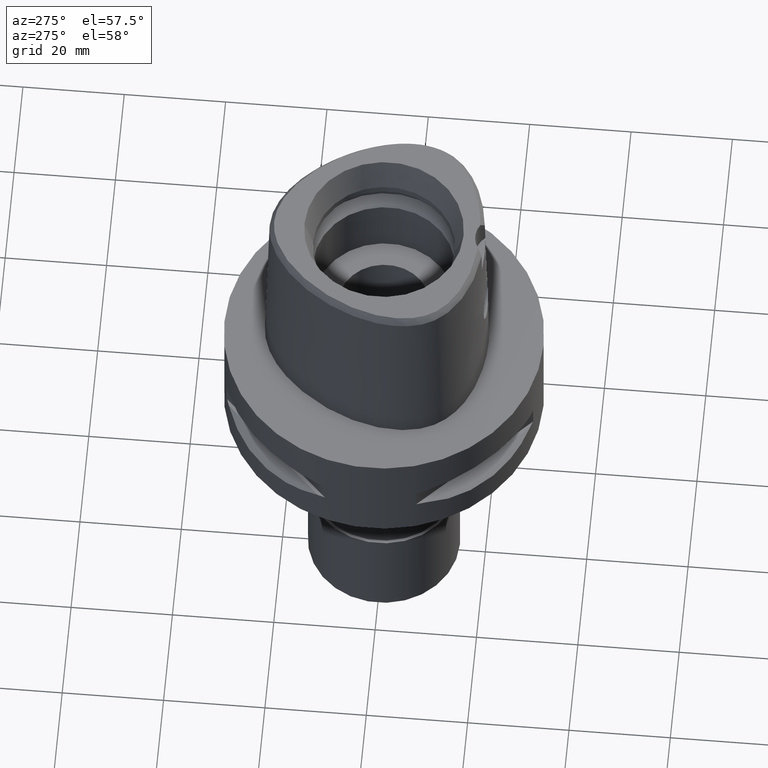
[diagram: clean part render]
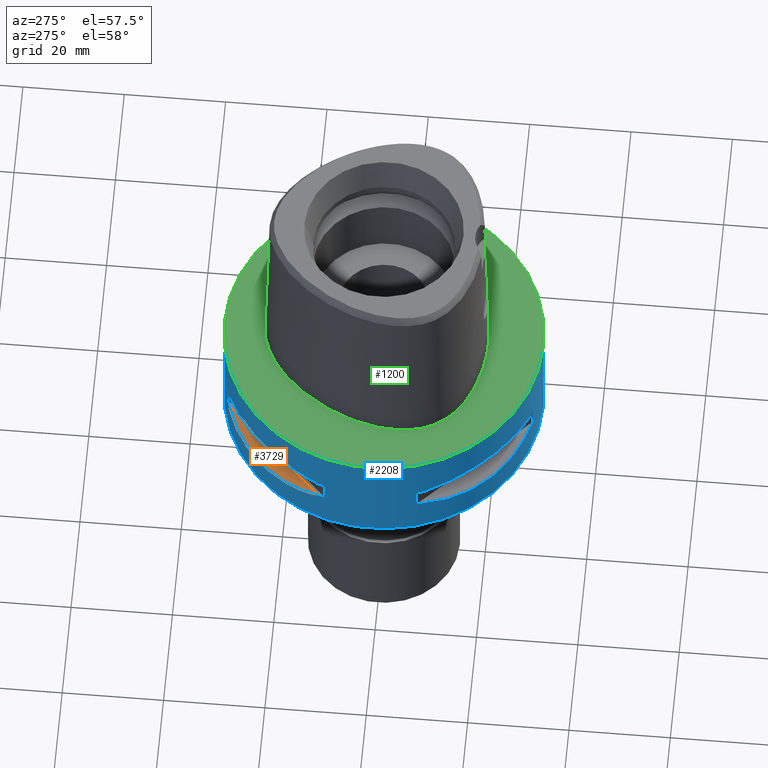
[diagram: same view with three faces highlighted in distinct colors, each labeled with its STEP entity id]
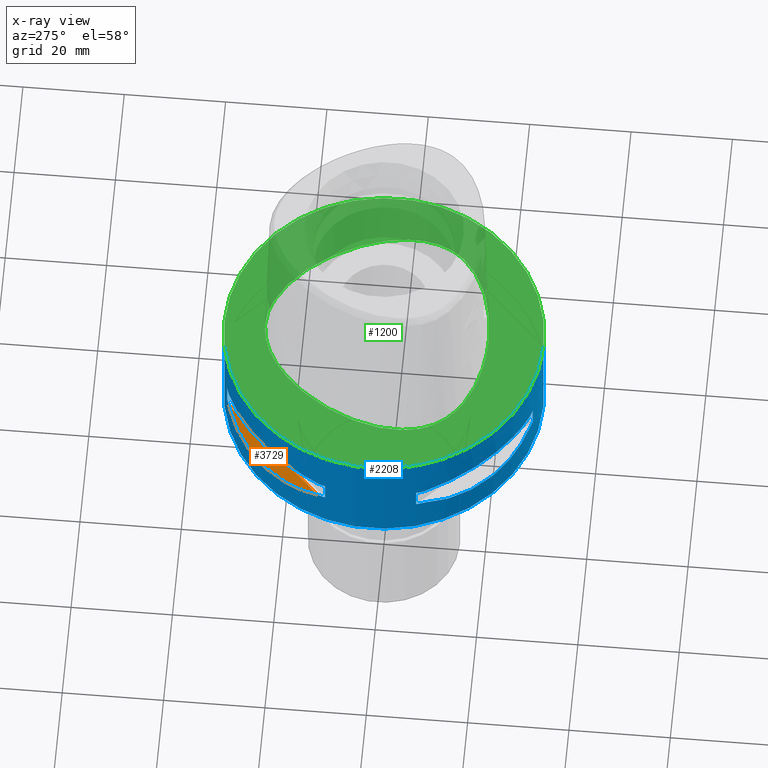
[diagram: x-ray of the same camera — body ghosted, the three highlighted faces saturated]
A machine part, auxiliary view with three faces highlighted in distinct colors.
The next image is the same camera in x-ray (body ghosted, the three faces saturated) — at least one of them is partly hidden behind the body in this view.
Their STEP definitions:

[orange] entity #3729 — the highlighted planar face has unit normal (0.3536, -0.3536, -0.866).
#11 = CARTESIAN_POINT ( 'NONE',  ( -10.44775724750000023, 29.71690375017999841, -14.05000000000000071 ) ) ;
#62 = CARTESIAN_POINT ( 'NONE',  ( -24.23018836745279714, 20.18579225685798306, -15.78559396978850415 ) ) ;
#85 = CARTESIAN_POINT ( 'NONE',  ( -26.01217882834653139, 17.76952662671834915, -15.52665221626015501 ) ) ;
#267 = DIRECTION ( 'NONE',  ( 0.3535533905933054277, -0.3535533905933049836, -0.8660254037844130615 ) ) ;
#454 = VECTOR ( 'NONE', #1169, 1000.000000000000114 ) ;
#568 = CARTESIAN_POINT ( 'NONE',  ( -34.22446612257000709, 5.940194875108000261, -14.05000000000000071 ) ) ;
#591 = PLANE ( 'NONE',  #3507 ) ;
#779 = CARTESIAN_POINT ( 'NONE',  ( -23.08532645888017854, 21.46242677077873751, -15.83938991065184076 ) ) ;
#852 = CARTESIAN_POINT ( 'NONE',  ( -29.71690375017999841, 10.44775724750000023, -14.05000000000000071 ) ) ;
#982 = CARTESIAN_POINT ( 'NONE',  ( -29.71690375017999841, 10.44775724750000023, -14.05000000000000071 ) ) ;
#1070 = CARTESIAN_POINT ( 'NONE',  ( -13.25636937902232404, 28.62019653469382163, -14.74888225540932751 ) ) ;
#1169 = DIRECTION ( 'NONE',  ( -0.7071067811865474617, -0.7071067811865474617, 0.0000000000000000000 ) ) ;
#1298 = FACE_OUTER_BOUND ( 'NONE', #1595, .T. ) ;
#1440 = CARTESIAN_POINT ( 'NONE',  ( -11.58970337493613378, 29.31542262584994418, -14.35229357166721265 ) ) ;
#1562 = CARTESIAN_POINT ( 'NONE',  ( -20.65093790435807364, 23.89673728056094859, -15.83935804902020550 ) ) ;
#1586 = CARTESIAN_POINT ( 'NONE',  ( -26.42800887047508240, 17.14106442934706820, -15.43984550238465836 ) ) ;
#1595 = EDGE_LOOP ( 'NONE', ( #3474, #2455 ) ) ;
#1975 = CARTESIAN_POINT ( 'NONE',  ( -26.29071741523646111, 17.35163608579689409, -15.46976201925398087 ) ) ;
#2009 = VERTEX_POINT ( 'NONE', #2366 ) ;
#2082 = DIRECTION ( 'NONE',  ( 0.0000000000000000000, -0.9258200997725358761, 0.3779644730092654448 ) ) ;
#2198 = CARTESIAN_POINT ( 'NONE',  ( -16.03138450077636534, 27.11872488589498786, -15.26880420107476333 ) ) ;
#2296 = CARTESIAN_POINT ( 'NONE',  ( -27.86285265926284893, 14.89252659058025685, -15.10765629752004813 ) ) ;
#2321 = CARTESIAN_POINT ( 'NONE',  ( -28.91382665368626093, 12.73197616788979047, -14.65467361754097197 ) ) ;
#2366 = CARTESIAN_POINT ( 'NONE',  ( -10.44775724750000023, 29.71690375017999841, -14.05000000000000071 ) ) ;
#2455 = ORIENTED_EDGE ( 'NONE', *, *, #4789, .T. ) ;
#2576 = CARTESIAN_POINT ( 'NONE',  ( -15.11986997308662595, 27.64634172018752523, -15.11207862403231239 ) ) ;
#2673 = CARTESIAN_POINT ( 'NONE',  ( -16.80193241490443157, 26.64486562695815053, -15.38992683735661515 ) ) ;
#2697 = CARTESIAN_POINT ( 'NONE',  ( -26.54368690921649687, 16.96123479564916892, -15.41365572341313239 ) ) ;
#2716 = CARTESIAN_POINT ( 'NONE',  ( -25.43927894891607622, 18.59229662064853983, -15.62866126334269623 ) ) ;
#2943 = EDGE_CURVE ( 'NONE', #2009, #3586, #3057, .T. ) ;
#3057 = LINE ( 'NONE', #11, #454 ) ;
#3086 = CARTESIAN_POINT ( 'NONE',  ( -18.86897208073744991, 25.32725744467937545, -15.69588095933747240 ) ) ;
#3333 = CARTESIAN_POINT ( 'NONE',  ( -16.70616724745637072, 26.70521063584585164, -15.37546661817639126 ) ) ;
#3458 = CARTESIAN_POINT ( 'NONE',  ( -16.89910283486545950, 26.58330558444438907, -15.40446471307224030 ) ) ;
#3474 = ORIENTED_EDGE ( 'NONE', *, *, #2943, .F. ) ;
#3482 = CARTESIAN_POINT ( 'NONE',  ( -16.86571563436579169, 26.60451452154777030, -15.39949295785988426 ) ) ;
#3507 = AXIS2_PLACEMENT_3D ( 'NONE', #568, #267, #2082 ) ;
#3586 = VERTEX_POINT ( 'NONE', #982 ) ;
#3708 = CARTESIAN_POINT ( 'NONE',  ( -16.48208282228564769, 26.84474411198887012, -15.34094883777873619 ) ) ;
#3729 = ADVANCED_FACE ( 'NONE', ( #1298 ), #591, .F. ) ;
#4154 = CARTESIAN_POINT ( 'NONE',  ( -26.48642424310458665, 17.05047092244234008, -15.42670883407647509 ) ) ;
#4592 = CARTESIAN_POINT ( 'NONE',  ( -26.52527364208584615, 16.98999780422065342, -15.41788098766309467 ) ) ;
#4682 = B_SPLINE_CURVE_WITH_KNOTS ( 'NONE', 3,
 ( #4824, #1440, #1070, #2576, #2198, #3708, #3333, #2673, #3482, #3458, #3086, #1562, #779, #62, #2716, #85, #1975, #1586, #4154, #4592, #2697, #2296, #2321, #852 ),
 .UNSPECIFIED., .F., .F.,
 ( 4, 1, 1, 1, 1, 1, 2, 2, 2, 1, 1, 1, 1, 1, 2, 2, 4 ),
 ( 0.0000000000000000000, 0.1249999999999950040, 0.1874999999999924505, 0.2187499999999911737, 0.2343749999999902855, 0.2421874999999899802, 0.2460937499999900080, 0.2499999999999900080, 0.4999999999999917843, 0.6249999999999925615, 0.6874999999999925615, 0.7187499999999924505, 0.7343749999999926725, 0.7421874999999927836, 0.7460937499999928946, 0.7499999999999931166, 1.000000000000000000 ),
 .UNSPECIFIED. ) ;
#4789 = EDGE_CURVE ( 'NONE', #2009, #3586, #4682, .T. ) ;
#4824 = CARTESIAN_POINT ( 'NONE',  ( -10.44775724750000023, 29.71690375017999841, -14.05000000000000071 ) ) ;

[blue] entity #2208 — the highlighted cylindrical surface (partial cylindrical patch) has radius 31.5 mm, axis along (0, 0, -1).
#4 = CARTESIAN_POINT ( 'NONE',  ( -29.71690375017999841, -10.44775724750000023, -14.05000000000000071 ) ) ;
#28 = EDGE_CURVE ( 'NONE', #4621, #2603, #4484, .T. ) ;
#62 = CARTESIAN_POINT ( 'NONE',  ( -24.23018836745279714, 20.18579225685798306, -15.78559396978850415 ) ) ;
#77 = ORIENTED_EDGE ( 'NONE', *, *, #3761, .T. ) ;
#85 = CARTESIAN_POINT ( 'NONE',  ( -26.01217882834653139, 17.76952662671834915, -15.52665221626015501 ) ) ;
#89 = ORIENTED_EDGE ( 'NONE', *, *, #2411, .T. ) ;
#112 = CARTESIAN_POINT ( 'NONE',  ( -29.71690375017999841, 10.44775724750000023, -9.949999999998999201 ) ) ;
#115 = CARTESIAN_POINT ( 'NONE',  ( -14.84422749192772883, 27.88214534473898354, -8.906206096515608905 ) ) ;
#140 = AXIS2_PLACEMENT_3D ( 'NONE', #3838, #1223, #2701 ) ;
#144 = CARTESIAN_POINT ( 'NONE',  ( -18.81455742157509903, 25.37277178172508840, -8.309746333145048069 ) ) ;
#204 = CIRCLE ( 'NONE', #295, 31.50000000000000711 ) ;
#213 = EDGE_LOOP ( 'NONE', ( #1305, #503, #1610, #4202, #4098, #2536, #3238, #89 ) ) ;
#216 = AXIS2_PLACEMENT_3D ( 'NONE', #3082, #1215, #4217 ) ;
#224 = CARTESIAN_POINT ( 'NONE',  ( 0.0000000000000000000, 1.266468487337999962E-14, -9.950000000000001066 ) ) ;
#232 = CIRCLE ( 'NONE', #471, 31.50000000000001776 ) ;
#251 = CARTESIAN_POINT ( 'NONE',  ( -8.981198972017999438, 30.19251670572000279, -9.950000000000001066 ) ) ;
#274 = DIRECTION ( 'NONE',  ( -0.9433937698468619626, -0.3316748332540863653, 0.0000000000000000000 ) ) ;
#280 = ORIENTED_EDGE ( 'NONE', *, *, #3002, .T. ) ;
#295 = AXIS2_PLACEMENT_3D ( 'NONE', #655, #1359, #3696 ) ;
#337 = DIRECTION ( 'NONE',  ( -0.9584925938322735872, -0.2851174276831918153, 0.0000000000000000000 ) ) ;
#340 = CARTESIAN_POINT ( 'NONE',  ( -26.58330558444411906, -16.89910283486596754, -15.40446471307235754 ) ) ;
#363 = CARTESIAN_POINT ( 'NONE',  ( -25.32725744469575702, -18.86897208070564247, -15.69588095933118943 ) ) ;
#366 = DIRECTION ( 'NONE',  ( 0.0000000000000000000, 0.0000000000000000000, -1.000000000000000000 ) ) ;
#376 = AXIS2_PLACEMENT_3D ( 'NONE', #1607, #2696, #1513 ) ;
#411 = CARTESIAN_POINT ( 'NONE',  ( 0.0000000000000000000, 1.266468487337999962E-14, -9.950000000000001066 ) ) ;
#413 = CARTESIAN_POINT ( 'NONE',  ( -26.64486562695783789, -16.80193241490531975, -15.38992683735687272 ) ) ;
#415 = CARTESIAN_POINT ( 'NONE',  ( -14.84430321572443034, -27.88210502987327288, -8.906184731984689407 ) ) ;
#425 = DIRECTION ( 'NONE',  ( 0.0000000000000000000, 0.0000000000000000000, 1.000000000000000000 ) ) ;
#438 = CARTESIAN_POINT ( 'NONE',  ( -8.981198972017999438, 30.19251670572000279, -14.05000000000000071 ) ) ;
#471 = AXIS2_PLACEMENT_3D ( 'NONE', #4291, #2427, #3934 ) ;
#503 = ORIENTED_EDGE ( 'NONE', *, *, #4489, .F. ) ;
#513 = EDGE_CURVE ( 'NONE', #4326, #1454, #4220, .T. ) ;
#570 = CARTESIAN_POINT ( 'NONE',  ( -30.19251670572000279, -8.981198972019999616, -9.950000000000001066 ) ) ;
#655 = CARTESIAN_POINT ( 'NONE',  ( 0.0000000000000000000, 1.266468487337999962E-14, -14.05000000000000071 ) ) ;
#669 = LINE ( 'NONE', #251, #2875 ) ;
#689 = CIRCLE ( 'NONE', #3592, 31.50000000000001776 ) ;
#715 = CARTESIAN_POINT ( 'NONE',  ( -27.11872488589304453, -16.03138450078185429, -15.26880420107623237 ) ) ;
#738 = CARTESIAN_POINT ( 'NONE',  ( 0.0000000000000000000, 31.50000000000000000, -22.00000000000000000 ) ) ;
#760 = CARTESIAN_POINT ( 'NONE',  ( -16.96123479564984748, -26.54368690921626950, -15.41365572341332424 ) ) ;
#762 = CYLINDRICAL_SURFACE ( 'NONE', #3907, 31.50000000000000000 ) ;
#779 = CARTESIAN_POINT ( 'NONE',  ( -23.08532645888017854, 21.46242677077873751, -15.83938991065184076 ) ) ;
#830 = CARTESIAN_POINT ( 'NONE',  ( -28.92474506843119286, -12.70092055735351266, -9.353547358214942875 ) ) ;
#849 = CARTESIAN_POINT ( 'NONE',  ( 0.0000000000000000000, 31.50000000000000000, 0.0000000000000000000 ) ) ;
#852 = CARTESIAN_POINT ( 'NONE',  ( -29.71690375017999841, 10.44775724750000023, -14.05000000000000071 ) ) ;
#861 = CARTESIAN_POINT ( 'NONE',  ( -27.88214534467230976, -14.84422749205291581, -8.906206096480268286 ) ) ;
#887 = CARTESIAN_POINT ( 'NONE',  ( -23.90617837150508507, -20.64154884324739214, -8.160627831297876611 ) ) ;
#937 = LINE ( 'NONE', #963, #3848 ) ;
#959 = CARTESIAN_POINT ( 'NONE',  ( -29.71690375017999841, -10.44775724750000023, -9.949999999998999201 ) ) ;
#963 = CARTESIAN_POINT ( 'NONE',  ( -8.981198972017999438, -30.19251670572000279, -14.05000000000000071 ) ) ;
#982 = CARTESIAN_POINT ( 'NONE',  ( -29.71690375017999841, 10.44775724750000023, -14.05000000000000071 ) ) ;
#1002 = VECTOR ( 'NONE', #3090, 1000.000000000000000 ) ;
#1012 = CIRCLE ( 'NONE', #376, 31.50000000000001776 ) ;
#1070 = CARTESIAN_POINT ( 'NONE',  ( -13.25636937902232404, 28.62019653469382163, -14.74888225540932751 ) ) ;
#1106 = CARTESIAN_POINT ( 'NONE',  ( -30.19251670572000279, -8.981198972017999438, -9.950000000000001066 ) ) ;
#1126 = VERTEX_POINT ( 'NONE', #2632 ) ;
#1143 = DIRECTION ( 'NONE',  ( -0.3316748332540863653, -0.9433937698468619626, 0.0000000000000000000 ) ) ;
#1154 = CARTESIAN_POINT ( 'NONE',  ( -21.46242677078364025, -23.08532645888299939, -15.83938991065501867 ) ) ;
#1161 = CIRCLE ( 'NONE', #216, 31.50000000000001776 ) ;
#1215 = DIRECTION ( 'NONE',  ( 0.0000000000000000000, 0.0000000000000000000, -1.000000000000000000 ) ) ;
#1223 = DIRECTION ( 'NONE',  ( 0.0000000000000000000, 0.0000000000000000000, -1.000000000000000000 ) ) ;
#1236 = VECTOR ( 'NONE', #4509, 1000.000000000000000 ) ;
#1305 = ORIENTED_EDGE ( 'NONE', *, *, #1802, .T. ) ;
#1310 = AXIS2_PLACEMENT_3D ( 'NONE', #3799, #425, #1143 ) ;
#1324 = EDGE_CURVE ( 'NONE', #3288, #4370, #937, .T. ) ;
#1327 = CARTESIAN_POINT ( 'NONE',  ( 0.0000000000000000000, -31.50000000000000000, 0.0000000000000000000 ) ) ;
#1328 = VERTEX_POINT ( 'NONE', #570 ) ;
#1359 = DIRECTION ( 'NONE',  ( 0.0000000000000000000, 0.0000000000000000000, -1.000000000000000000 ) ) ;
#1398 = DIRECTION ( 'NONE',  ( -0.9433937698468619626, 0.3316748332540863653, 0.0000000000000000000 ) ) ;
#1424 = B_SPLINE_CURVE_WITH_KNOTS ( 'NONE', 3,
 ( #3840, #830, #861, #3144, #887, #3118, #4598, #415, #4206, #1983 ),
 .UNSPECIFIED., .F., .F.,
 ( 4, 2, 2, 2, 4 ),
 ( 0.0000000000000000000, 0.2499999999999999445, 0.4999999999999998890, 0.7499999999999997780, 1.000000000000000000 ),
 .UNSPECIFIED. ) ;
#1440 = CARTESIAN_POINT ( 'NONE',  ( -11.58970337493613378, 29.31542262584994418, -14.35229357166721265 ) ) ;
#1445 = CARTESIAN_POINT ( 'NONE',  ( -18.59229662065495958, -25.43927894891979946, -15.62866126334684580 ) ) ;
#1448 = DIRECTION ( 'NONE',  ( 0.0000000000000000000, 0.0000000000000000000, 1.000000000000000000 ) ) ;
#1454 = VERTEX_POINT ( 'NONE', #738 ) ;
#1486 = ORIENTED_EDGE ( 'NONE', *, *, #1523, .F. ) ;
#1495 = CARTESIAN_POINT ( 'NONE',  ( -17.76952662672209371, -26.01217882834868433, -15.52665221626257264 ) ) ;
#1498 = EDGE_CURVE ( 'NONE', #4621, #3851, #4074, .T. ) ;
#1513 = DIRECTION ( 'NONE',  ( -0.9584925938322735872, 0.2851174276831918153, 0.0000000000000000000 ) ) ;
#1519 = CARTESIAN_POINT ( 'NONE',  ( -29.71690375017999841, -10.44775724750000023, -14.05000000000000071 ) ) ;
#1523 = EDGE_CURVE ( 'NONE', #1328, #2603, #2581, .T. ) ;
#1561 = CARTESIAN_POINT ( 'NONE',  ( -8.981198972019999616, 30.19251670572000279, -9.950000000000001066 ) ) ;
#1562 = CARTESIAN_POINT ( 'NONE',  ( -20.65093790435807364, 23.89673728056094859, -15.83935804902020550 ) ) ;
#1575 = VERTEX_POINT ( 'NONE', #112 ) ;
#1586 = CARTESIAN_POINT ( 'NONE',  ( -26.42800887047508240, 17.14106442934706820, -15.43984550238465836 ) ) ;
#1589 = EDGE_CURVE ( 'NONE', #1907, #4326, #4228, .T. ) ;
#1600 = ORIENTED_EDGE ( 'NONE', *, *, #2098, .T. ) ;
#1607 = CARTESIAN_POINT ( 'NONE',  ( 0.0000000000000000000, 1.266468487337999962E-14, -14.05000000000000071 ) ) ;
#1610 = ORIENTED_EDGE ( 'NONE', *, *, #4057, .T. ) ;
#1615 = CARTESIAN_POINT ( 'NONE',  ( -23.90617837143843971, 20.64154884331406237, -8.160613588453220046 ) ) ;
#1644 = CARTESIAN_POINT ( 'NONE',  ( -25.37272068394556257, 18.81462633037747167, -8.309724968578811044 ) ) ;
#1687 = EDGE_CURVE ( 'NONE', #1907, #4468, #1980, .T. ) ;
#1796 = DIRECTION ( 'NONE',  ( 0.0000000000000000000, -1.000000000000000000, 0.0000000000000000000 ) ) ;
#1802 = EDGE_CURVE ( 'NONE', #1575, #2192, #2092, .T. ) ;
#1818 = CARTESIAN_POINT ( 'NONE',  ( -29.31542262584746794, -11.58970337494326941, -14.35229357166913999 ) ) ;
#1840 = CARTESIAN_POINT ( 'NONE',  ( -17.35163608579889072, -26.29071741523761929, -15.46976201925527761 ) ) ;
#1842 = CARTESIAN_POINT ( 'NONE',  ( 0.0000000000000000000, 1.266468487337999962E-14, -22.00000000000000000 ) ) ;
#1872 = CARTESIAN_POINT ( 'NONE',  ( 0.0000000000000000000, -31.50000000000000000, -22.00000000000000000 ) ) ;
#1907 = VERTEX_POINT ( 'NONE', #1327 ) ;
#1910 = CARTESIAN_POINT ( 'NONE',  ( -27.88210502980663819, 14.84430321584963330, -8.906184731949371880 ) ) ;
#1917 = EDGE_CURVE ( 'NONE', #4007, #2350, #669, .T. ) ;
#1975 = CARTESIAN_POINT ( 'NONE',  ( -26.29071741523646111, 17.35163608579689409, -15.46976201925398087 ) ) ;
#1980 = LINE ( 'NONE', #2722, #1002 ) ;
#1983 = CARTESIAN_POINT ( 'NONE',  ( -10.44775724750000023, -29.71690375017999841, -9.949999999998999201 ) ) ;
#1984 = CARTESIAN_POINT ( 'NONE',  ( -8.981198972019999616, -30.19251670572000279, -14.05000000000000071 ) ) ;
#2009 = VERTEX_POINT ( 'NONE', #2366 ) ;
#2011 = CIRCLE ( 'NONE', #1310, 31.50000000000000711 ) ;
#2072 = CARTESIAN_POINT ( 'NONE',  ( -30.19251670572000279, -8.981198972017999438, -14.05000000000000071 ) ) ;
#2092 = CIRCLE ( 'NONE', #3352, 31.50000000000000711 ) ;
#2098 = EDGE_CURVE ( 'NONE', #1454, #4468, #4772, .T. ) ;
#2192 = VERTEX_POINT ( 'NONE', #2926 ) ;
#2198 = CARTESIAN_POINT ( 'NONE',  ( -16.03138450077636534, 27.11872488589498786, -15.26880420107476333 ) ) ;
#2205 = CARTESIAN_POINT ( 'NONE',  ( -26.70521063584532229, -16.70616724745790549, -15.37546661817682292 ) ) ;
#2208 = ADVANCED_FACE ( 'NONE', ( #2630, #3319, #4088 ), #762, .T. ) ;
#2255 = CARTESIAN_POINT ( 'NONE',  ( -17.14106442934810204, -26.42800887047570058, -15.43984550238532982 ) ) ;
#2278 = CARTESIAN_POINT ( 'NONE',  ( -28.62019653468943048, -13.25636937903484203, -14.74888225541266884 ) ) ;
#2296 = CARTESIAN_POINT ( 'NONE',  ( -27.86285265926284893, 14.89252659058025685, -15.10765629752004813 ) ) ;
#2306 = EDGE_CURVE ( 'NONE', #2415, #2505, #1424, .T. ) ;
#2321 = CARTESIAN_POINT ( 'NONE',  ( -28.91382665368626093, 12.73197616788979047, -14.65467361754097197 ) ) ;
#2350 = VERTEX_POINT ( 'NONE', #438 ) ;
#2366 = CARTESIAN_POINT ( 'NONE',  ( -10.44775724750000023, 29.71690375017999841, -14.05000000000000071 ) ) ;
#2406 = CARTESIAN_POINT ( 'NONE',  ( -12.70092055726457225, 28.92474506846247451, -9.353547358238497367 ) ) ;
#2411 = EDGE_CURVE ( 'NONE', #3176, #1575, #4127, .T. ) ;
#2415 = VERTEX_POINT ( 'NONE', #959 ) ;
#2427 = DIRECTION ( 'NONE',  ( 0.0000000000000000000, 0.0000000000000000000, 1.000000000000000000 ) ) ;
#2467 = DIRECTION ( 'NONE',  ( 0.0000000000000000000, 0.0000000000000000000, -1.000000000000000000 ) ) ;
#2505 = VERTEX_POINT ( 'NONE', #3655 ) ;
#2536 = ORIENTED_EDGE ( 'NONE', *, *, #1917, .F. ) ;
#2576 = CARTESIAN_POINT ( 'NONE',  ( -15.11986997308662595, 27.64634172018752523, -15.11207862403231239 ) ) ;
#2581 = LINE ( 'NONE', #1106, #1236 ) ;
#2603 = VERTEX_POINT ( 'NONE', #2072 ) ;
#2630 = FACE_OUTER_BOUND ( 'NONE', #3161, .T. ) ;
#2632 = CARTESIAN_POINT ( 'NONE',  ( -30.19251670572000279, 8.981198972019999616, -14.05000000000000071 ) ) ;
#2636 = ORIENTED_EDGE ( 'NONE', *, *, #1324, .F. ) ;
#2654 = CARTESIAN_POINT ( 'NONE',  ( -16.98999780422095540, -26.52527364208602734, -15.41788098766330783 ) ) ;
#2673 = CARTESIAN_POINT ( 'NONE',  ( -16.80193241490443157, 26.64486562695815053, -15.38992683735661515 ) ) ;
#2681 = CARTESIAN_POINT ( 'NONE',  ( -29.71690375017999841, 10.44775724750000023, -9.949999999998999201 ) ) ;
#2696 = DIRECTION ( 'NONE',  ( 0.0000000000000000000, 0.0000000000000000000, -1.000000000000000000 ) ) ;
#2697 = CARTESIAN_POINT ( 'NONE',  ( -26.54368690921649687, 16.96123479564916892, -15.41365572341313239 ) ) ;
#2701 = DIRECTION ( 'NONE',  ( 0.0000000000000000000, -1.000000000000000000, 0.0000000000000000000 ) ) ;
#2708 = EDGE_CURVE ( 'NONE', #4007, #3176, #232, .T. ) ;
#2716 = CARTESIAN_POINT ( 'NONE',  ( -25.43927894891607622, 18.59229662064853983, -15.62866126334269623 ) ) ;
#2722 = CARTESIAN_POINT ( 'NONE',  ( 0.0000000000000000000, -31.50000000000000000, 0.0000000000000000000 ) ) ;
#2875 = VECTOR ( 'NONE', #2467, 1000.000000000000000 ) ;
#2926 = CARTESIAN_POINT ( 'NONE',  ( -30.19251670572000279, 8.981198972017999438, -9.950000000000001066 ) ) ;
#2946 = CARTESIAN_POINT ( 'NONE',  ( -10.44775724750000023, -29.71690375017999841, -14.05000000000000071 ) ) ;
#3002 = EDGE_CURVE ( 'NONE', #3288, #3851, #1161, .T. ) ;
#3056 = EDGE_CURVE ( 'NONE', #2505, #4370, #2011, .T. ) ;
#3058 = AXIS2_PLACEMENT_3D ( 'NONE', #4787, #3597, #274 ) ;
#3060 = DIRECTION ( 'NONE',  ( 0.0000000000000000000, 0.0000000000000000000, -1.000000000000000000 ) ) ;
#3082 = CARTESIAN_POINT ( 'NONE',  ( 0.0000000000000000000, 1.266468487337999962E-14, -14.05000000000000071 ) ) ;
#3086 = CARTESIAN_POINT ( 'NONE',  ( -18.86897208073744991, 25.32725744467937545, -15.69588095933747240 ) ) ;
#3090 = DIRECTION ( 'NONE',  ( 0.0000000000000000000, 0.0000000000000000000, -1.000000000000000000 ) ) ;
#3093 = CARTESIAN_POINT ( 'NONE',  ( -28.92472615203844910, 12.70097436187914575, -9.353533115194341718 ) ) ;
#3118 = CARTESIAN_POINT ( 'NONE',  ( -20.64154884324739214, -23.90617837150508507, -8.160613588476770985 ) ) ;
#3128 = ORIENTED_EDGE ( 'NONE', *, *, #1498, .F. ) ;
#3144 = CARTESIAN_POINT ( 'NONE',  ( -25.37277178164059777, -18.81455742168903456, -8.309746333109707450 ) ) ;
#3161 = EDGE_LOOP ( 'NONE', ( #1600, #3650, #3314, #4795 ) ) ;
#3176 = VERTEX_POINT ( 'NONE', #4000 ) ;
#3200 = ORIENTED_EDGE ( 'NONE', *, *, #28, .T. ) ;
#3238 = ORIENTED_EDGE ( 'NONE', *, *, #2708, .T. ) ;
#3288 = VERTEX_POINT ( 'NONE', #1984 ) ;
#3314 = ORIENTED_EDGE ( 'NONE', *, *, #1589, .T. ) ;
#3317 = CARTESIAN_POINT ( 'NONE',  ( -26.60451452154760332, -16.86571563436626064, -15.39949295786003347 ) ) ;
#3319 = FACE_BOUND ( 'NONE', #213, .T. ) ;
#3333 = CARTESIAN_POINT ( 'NONE',  ( -16.70616724745637072, 26.70521063584585164, -15.37546661817639126 ) ) ;
#3338 = CARTESIAN_POINT ( 'NONE',  ( -12.73197616784617381, -28.91382665370159799, -14.65467361752943809 ) ) ;
#3352 = AXIS2_PLACEMENT_3D ( 'NONE', #224, #3591, #1398 ) ;
#3368 = VECTOR ( 'NONE', #3060, 1000.000000000000000 ) ;
#3390 = ORIENTED_EDGE ( 'NONE', *, *, #2306, .T. ) ;
#3458 = CARTESIAN_POINT ( 'NONE',  ( -16.89910283486545950, 26.58330558444438907, -15.40446471307224030 ) ) ;
#3466 = CARTESIAN_POINT ( 'NONE',  ( -10.44775724750000023, 29.71690375017999841, -9.949999999998999201 ) ) ;
#3482 = CARTESIAN_POINT ( 'NONE',  ( -16.86571563436579169, 26.60451452154777030, -15.39949295785988426 ) ) ;
#3549 = ORIENTED_EDGE ( 'NONE', *, *, #3056, .T. ) ;
#3586 = VERTEX_POINT ( 'NONE', #982 ) ;
#3591 = DIRECTION ( 'NONE',  ( 0.0000000000000000000, 0.0000000000000000000, 1.000000000000000000 ) ) ;
#3592 = AXIS2_PLACEMENT_3D ( 'NONE', #411, #4431, #337 ) ;
#3597 = DIRECTION ( 'NONE',  ( 0.0000000000000000000, 0.0000000000000000000, -1.000000000000000000 ) ) ;
#3650 = ORIENTED_EDGE ( 'NONE', *, *, #1687, .F. ) ;
#3655 = CARTESIAN_POINT ( 'NONE',  ( -10.44775724750000023, -29.71690375017999841, -9.949999999998999201 ) ) ;
#3670 = CARTESIAN_POINT ( 'NONE',  ( 0.0000000000000000000, 31.50000000000000000, 0.0000000000000000000 ) ) ;
#3696 = DIRECTION ( 'NONE',  ( -0.3316748332540863653, 0.9433937698468619626, 0.0000000000000000000 ) ) ;
#3708 = CARTESIAN_POINT ( 'NONE',  ( -16.48208282228564769, 26.84474411198887012, -15.34094883777873619 ) ) ;
#3733 = CARTESIAN_POINT ( 'NONE',  ( -27.64634172018421410, -15.11986997309601577, -15.11207862403482238 ) ) ;
#3735 = DIRECTION ( 'NONE',  ( 0.0000000000000000000, 1.000000000000000000, 0.0000000000000000000 ) ) ;
#3741 = CARTESIAN_POINT ( 'NONE',  ( -30.19251670572000279, 8.981198972017999438, -14.05000000000000071 ) ) ;
#3761 = EDGE_CURVE ( 'NONE', #1328, #2415, #689, .T. ) ;
#3766 = CARTESIAN_POINT ( 'NONE',  ( 0.0000000000000000000, 1.266468487337999962E-14, 3.415000000000000036 ) ) ;
#3773 = LINE ( 'NONE', #3741, #4303 ) ;
#3795 = DIRECTION ( 'NONE',  ( 0.0000000000000000000, 0.0000000000000000000, 1.000000000000000000 ) ) ;
#3799 = CARTESIAN_POINT ( 'NONE',  ( 0.0000000000000000000, 1.266468487337999962E-14, -9.950000000000001066 ) ) ;
#3838 = CARTESIAN_POINT ( 'NONE',  ( 0.0000000000000000000, 1.266468487337999962E-14, 0.0000000000000000000 ) ) ;
#3840 = CARTESIAN_POINT ( 'NONE',  ( -29.71690375017999841, -10.44775724750000023, -9.949999999998999201 ) ) ;
#3848 = VECTOR ( 'NONE', #4329, 1000.000000000000000 ) ;
#3851 = VERTEX_POINT ( 'NONE', #4771 ) ;
#3907 = AXIS2_PLACEMENT_3D ( 'NONE', #3766, #366, #1796 ) ;
#3934 = DIRECTION ( 'NONE',  ( -0.2851174276831918153, 0.9584925938322735872, 0.0000000000000000000 ) ) ;
#3937 = EDGE_LOOP ( 'NONE', ( #3549, #2636, #280, #3128, #3200, #1486, #77, #3390 ) ) ;
#4000 = CARTESIAN_POINT ( 'NONE',  ( -10.44775724750000023, 29.71690375017999841, -9.949999999998999201 ) ) ;
#4007 = VERTEX_POINT ( 'NONE', #1561 ) ;
#4057 = EDGE_CURVE ( 'NONE', #1126, #3586, #1012, .T. ) ;
#4074 = B_SPLINE_CURVE_WITH_KNOTS ( 'NONE', 3,
 ( #1519, #1818, #2278, #3733, #715, #4454, #2205, #413, #3317, #340, #363, #4529, #1154, #4830, #1445, #1495, #1840, #2255, #4853, #2654, #760, #4159, #3338, #2946 ),
 .UNSPECIFIED., .F., .F.,
 ( 4, 1, 1, 1, 1, 1, 2, 2, 2, 1, 1, 1, 1, 1, 2, 2, 4 ),
 ( 0.0000000000000000000, 0.1250000000000055511, 0.1875000000000083267, 0.2187500000000097977, 0.2343750000000106304, 0.2421875000000108247, 0.2460937500000108524, 0.2500000000000108802, 0.5000000000000087708, 0.6250000000000075495, 0.6875000000000071054, 0.7187500000000067724, 0.7343750000000066613, 0.7421875000000065503, 0.7460937500000062172, 0.7500000000000059952, 1.000000000000000000 ),
 .UNSPECIFIED. ) ;
#4088 = FACE_BOUND ( 'NONE', #3937, .T. ) ;
#4098 = ORIENTED_EDGE ( 'NONE', *, *, #4304, .T. ) ;
#4127 = B_SPLINE_CURVE_WITH_KNOTS ( 'NONE', 3,
 ( #3466, #2406, #115, #144, #4184, #1615, #1644, #1910, #3093, #2681 ),
 .UNSPECIFIED., .F., .F.,
 ( 4, 2, 2, 2, 4 ),
 ( 0.0000000000000000000, 0.2500000000000000000, 0.5000000000000000000, 0.7500000000000000000, 1.000000000000000000 ),
 .UNSPECIFIED. ) ;
#4143 = AXIS2_PLACEMENT_3D ( 'NONE', #1842, #1448, #3735 ) ;
#4154 = CARTESIAN_POINT ( 'NONE',  ( -26.48642424310458665, 17.05047092244234008, -15.42670883407647509 ) ) ;
#4159 = CARTESIAN_POINT ( 'NONE',  ( -14.89252659053665440, -27.86285265927818600, -15.10765629750852135 ) ) ;
#4184 = CARTESIAN_POINT ( 'NONE',  ( -20.64154884331406237, 23.90617837143844682, -8.160627831321422221 ) ) ;
#4202 = ORIENTED_EDGE ( 'NONE', *, *, #4789, .F. ) ;
#4206 = CARTESIAN_POINT ( 'NONE',  ( -12.70097436179016981, -28.92472615206970588, -9.353533115217881999 ) ) ;
#4217 = DIRECTION ( 'NONE',  ( -0.2851174276831918153, -0.9584925938322735872, 0.0000000000000000000 ) ) ;
#4220 = LINE ( 'NONE', #849, #3368 ) ;
#4228 = CIRCLE ( 'NONE', #140, 31.50000000000000000 ) ;
#4291 = CARTESIAN_POINT ( 'NONE',  ( 0.0000000000000000000, 1.266468487337999962E-14, -9.950000000000001066 ) ) ;
#4303 = VECTOR ( 'NONE', #3795, 1000.000000000000000 ) ;
#4304 = EDGE_CURVE ( 'NONE', #2009, #2350, #204, .T. ) ;
#4326 = VERTEX_POINT ( 'NONE', #3670 ) ;
#4329 = DIRECTION ( 'NONE',  ( 0.0000000000000000000, 0.0000000000000000000, 1.000000000000000000 ) ) ;
#4370 = VERTEX_POINT ( 'NONE', #4812 ) ;
#4431 = DIRECTION ( 'NONE',  ( 0.0000000000000000000, 0.0000000000000000000, 1.000000000000000000 ) ) ;
#4454 = CARTESIAN_POINT ( 'NONE',  ( -26.84474411198783628, -16.48208282228858224, -15.34094883777952667 ) ) ;
#4468 = VERTEX_POINT ( 'NONE', #1872 ) ;
#4484 = CIRCLE ( 'NONE', #3058, 31.50000000000000711 ) ;
#4489 = EDGE_CURVE ( 'NONE', #1126, #2192, #3773, .T. ) ;
#4509 = DIRECTION ( 'NONE',  ( 0.0000000000000000000, 0.0000000000000000000, -1.000000000000000000 ) ) ;
#4529 = CARTESIAN_POINT ( 'NONE',  ( -23.89673728055121416, -20.65093790435243193, -15.83935804901394739 ) ) ;
#4592 = CARTESIAN_POINT ( 'NONE',  ( -26.52527364208584615, 16.98999780422065342, -15.41788098766309467 ) ) ;
#4598 = CARTESIAN_POINT ( 'NONE',  ( -18.81462633026353970, -25.37272068403001413, -8.309724968614128571 ) ) ;
#4621 = VERTEX_POINT ( 'NONE', #4 ) ;
#4682 = B_SPLINE_CURVE_WITH_KNOTS ( 'NONE', 3,
 ( #4824, #1440, #1070, #2576, #2198, #3708, #3333, #2673, #3482, #3458, #3086, #1562, #779, #62, #2716, #85, #1975, #1586, #4154, #4592, #2697, #2296, #2321, #852 ),
 .UNSPECIFIED., .F., .F.,
 ( 4, 1, 1, 1, 1, 1, 2, 2, 2, 1, 1, 1, 1, 1, 2, 2, 4 ),
 ( 0.0000000000000000000, 0.1249999999999950040, 0.1874999999999924505, 0.2187499999999911737, 0.2343749999999902855, 0.2421874999999899802, 0.2460937499999900080, 0.2499999999999900080, 0.4999999999999917843, 0.6249999999999925615, 0.6874999999999925615, 0.7187499999999924505, 0.7343749999999926725, 0.7421874999999927836, 0.7460937499999928946, 0.7499999999999931166, 1.000000000000000000 ),
 .UNSPECIFIED. ) ;
#4771 = CARTESIAN_POINT ( 'NONE',  ( -10.44775724750000023, -29.71690375017999841, -14.05000000000000071 ) ) ;
#4772 = CIRCLE ( 'NONE', #4143, 31.50000000000000000 ) ;
#4787 = CARTESIAN_POINT ( 'NONE',  ( 0.0000000000000000000, 1.266468487337999962E-14, -14.05000000000000071 ) ) ;
#4789 = EDGE_CURVE ( 'NONE', #2009, #3586, #4682, .T. ) ;
#4795 = ORIENTED_EDGE ( 'NONE', *, *, #513, .T. ) ;
#4812 = CARTESIAN_POINT ( 'NONE',  ( -8.981198972017999438, -30.19251670572000279, -9.950000000000001066 ) ) ;
#4824 = CARTESIAN_POINT ( 'NONE',  ( -10.44775724750000023, 29.71690375017999841, -14.05000000000000071 ) ) ;
#4830 = CARTESIAN_POINT ( 'NONE',  ( -20.18579225686653444, -24.23018836745773541, -15.78559396979401974 ) ) ;
#4853 = CARTESIAN_POINT ( 'NONE',  ( -17.05047092244293694, -26.48642424310493837, -15.42670883407686588 ) ) ;

[green] entity #1200 — the highlighted planar face has unit normal (0, 0, -1).
#23 = CARTESIAN_POINT ( 'NONE',  ( -16.95889172064289596, -15.67838866513467799, 3.413330286277348191E-07 ) ) ;
#70 = CARTESIAN_POINT ( 'NONE',  ( 14.40795639653769555, 15.64093750587676190, -3.622317173317991801E-07 ) ) ;
#92 = EDGE_CURVE ( 'NONE', #4326, #1907, #2116, .T. ) ;
#116 = CARTESIAN_POINT ( 'NONE',  ( 10.74572891644512751, 19.17433594446886502, -3.622317173317991801E-07 ) ) ;
#140 = AXIS2_PLACEMENT_3D ( 'NONE', #3838, #1223, #2701 ) ;
#186 = VERTEX_POINT ( 'NONE', #4234 ) ;
#255 = CARTESIAN_POINT ( 'NONE',  ( 0.0000000000000000000, 1.266468487337999962E-14, 0.0000000000000000000 ) ) ;
#367 = CARTESIAN_POINT ( 'NONE',  ( -5.098437014097783049, 22.52602538266949495, 3.413330286277348191E-07 ) ) ;
#391 = AXIS2_PLACEMENT_3D ( 'NONE', #255, #1755, #2881 ) ;
#439 = CARTESIAN_POINT ( 'NONE',  ( 21.97832648683652579, -0.2810937484156693089, -3.622317173317991801E-07 ) ) ;
#465 = EDGE_LOOP ( 'NONE', ( #1269, #4169 ) ) ;
#470 = CARTESIAN_POINT ( 'NONE',  ( 14.67337964869117428, -17.21410157039260724, -3.622317173317991801E-07 ) ) ;
#519 = CARTESIAN_POINT ( 'NONE',  ( 2.113823673604990905, -20.67500000905516444, -3.622317173317991801E-07 ) ) ;
#544 = CARTESIAN_POINT ( 'NONE',  ( 21.55524826880889222, -8.996025393213916033, -3.622317173317991801E-07 ) ) ;
#687 = ORIENTED_EDGE ( 'NONE', *, *, #92, .F. ) ;
#741 = CARTESIAN_POINT ( 'NONE',  ( -10.74572890507537615, 19.17433593092956912, 3.413330286277348191E-07 ) ) ;
#763 = CARTESIAN_POINT ( 'NONE',  ( -14.67337963995607630, -17.21410155506450224, 3.413330286277348191E-07 ) ) ;
#888 = CARTESIAN_POINT ( 'NONE',  ( 18.56841065801460644, -14.16937988905933565, -3.622317173317991801E-07 ) ) ;
#1109 = CARTESIAN_POINT ( 'NONE',  ( -22.05732873474001465, -6.847636717530882322, 3.413330286277348191E-07 ) ) ;
#1132 = CARTESIAN_POINT ( 'NONE',  ( -20.74942740072244973, 4.657187497090543360, 3.413330286277348191E-07 ) ) ;
#1157 = CARTESIAN_POINT ( 'NONE',  ( -21.97832646942232770, -0.2810937514928978365, 3.413330286277348191E-07 ) ) ;
#1200 = ADVANCED_FACE ( 'NONE', ( #3617, #1769 ), #3196, .F. ) ;
#1223 = DIRECTION ( 'NONE',  ( 0.0000000000000000000, 0.0000000000000000000, -1.000000000000000000 ) ) ;
#1253 = CARTESIAN_POINT ( 'NONE',  ( 22.05732875222183509, -6.847636720043336567, -3.622317173317991801E-07 ) ) ;
#1269 = ORIENTED_EDGE ( 'NONE', *, *, #3246, .F. ) ;
#1327 = CARTESIAN_POINT ( 'NONE',  ( 0.0000000000000000000, -31.50000000000000000, 0.0000000000000000000 ) ) ;
#1449 = CARTESIAN_POINT ( 'NONE',  ( -2.113823672557570532, -20.67499999147192469, 3.413330286277348191E-07 ) ) ;
#1572 = CARTESIAN_POINT ( 'NONE',  ( 20.34961799342183753, -11.74885742641077435, -3.622317173317991801E-07 ) ) ;
#1589 = EDGE_CURVE ( 'NONE', #1907, #4326, #4228, .T. ) ;
#1596 = CARTESIAN_POINT ( 'NONE',  ( 6.174427824619000380E-11, 23.47499999999000053, 1.437368742547999734E-13 ) ) ;
#1674 = CARTESIAN_POINT ( 'NONE',  ( 16.95889173156317398, -15.67838867902471023, -3.622317173317991801E-07 ) ) ;
#1695 = CARTESIAN_POINT ( 'NONE',  ( 0.0000000000000000000, 1.224646799146999965E-14, 0.0000000000000000000 ) ) ;
#1755 = DIRECTION ( 'NONE',  ( 0.0000000000000000000, 0.0000000000000000000, -1.000000000000000000 ) ) ;
#1769 = FACE_BOUND ( 'NONE', #465, .T. ) ;
#1821 = CARTESIAN_POINT ( 'NONE',  ( 6.174427824619000380E-11, 23.47499999999000053, 1.437368742547999734E-13 ) ) ;
#1843 = CARTESIAN_POINT ( 'NONE',  ( -7.571159430028192361, 21.31457030511730366, 3.413330286277348191E-07 ) ) ;
#1868 = CARTESIAN_POINT ( 'NONE',  ( -22.24453906998456176, -4.100468750050331401, 3.413330286277348191E-07 ) ) ;
#1875 = AXIS2_PLACEMENT_3D ( 'NONE', #1695, #3266, #2133 ) ;
#1888 = CARTESIAN_POINT ( 'NONE',  ( -18.56841064521006146, -14.16937987692041290, 3.413330286277348191E-07 ) ) ;
#1907 = VERTEX_POINT ( 'NONE', #1327 ) ;
#1934 = CARTESIAN_POINT ( 'NONE',  ( -1.227254753001000157E-11, -20.67499999999999716, 1.466234541187999854E-13 ) ) ;
#1961 = CARTESIAN_POINT ( 'NONE',  ( 2.564517728817370834, 23.29328125891723289, -3.622317173317991801E-07 ) ) ;
#1977 = ORIENTED_EDGE ( 'NONE', *, *, #1589, .F. ) ;
#2005 = CARTESIAN_POINT ( 'NONE',  ( 6.341471020820697468, -20.29812500897093841, -3.622317173317991801E-07 ) ) ;
#2116 = CIRCLE ( 'NONE', #391, 31.50000000000000000 ) ;
#2133 = DIRECTION ( 'NONE',  ( 0.0000000000000000000, -1.000000000000000000, 0.0000000000000000000 ) ) ;
#2209 = CARTESIAN_POINT ( 'NONE',  ( -0.8548392416937501403, 23.47499999146616290, 3.413330286277348191E-07 ) ) ;
#2233 = CARTESIAN_POINT ( 'NONE',  ( -11.23259756434597634, -18.89324217944089668, 3.413330286277348191E-07 ) ) ;
#2260 = CARTESIAN_POINT ( 'NONE',  ( -1.227254753001000157E-11, -20.67499999999999716, 1.466234541187999854E-13 ) ) ;
#2358 = B_SPLINE_CURVE_WITH_KNOTS ( 'NONE', 3,
 ( #1821, #2209, #4512, #367, #1843, #741, #4114, #3343, #1132, #1157, #1868, #1109, #2631, #2610, #4138, #3320, #1888, #23, #763, #2233, #3049, #1449, #2260 ),
 .UNSPECIFIED., .F., .F.,
 ( 4, 1, 1, 1, 1, 1, 1, 1, 1, 1, 1, 1, 1, 1, 1, 1, 1, 1, 1, 1, 4 ),
 ( 0.0000000000000000000, 0.04166666666761999899, 0.08333333333423000033, 0.1250000000007999990, 0.1666666666675000186, 0.2500000000006999956, 0.3333333333339000282, 0.4166666666672000363, 0.5000000000004000134, 0.5416666666670000296, 0.5833333333336000459, 0.6250000000001999512, 0.6458333333335000148, 0.6666666666668999985, 0.6875000000001999512, 0.7083333333333999837, 0.7500000000001000311, 0.7916666666667000474, 0.8333333333333000637, 0.9166666666666000163, 1.000000000000000000 ),
 .UNSPECIFIED. ) ;
#2428 = VERTEX_POINT ( 'NONE', #3168 ) ;
#2430 = EDGE_LOOP ( 'NONE', ( #687, #1977 ) ) ;
#2610 = CARTESIAN_POINT ( 'NONE',  ( -20.93173251430127024, -10.60431640277617404, 3.413330286277348191E-07 ) ) ;
#2631 = CARTESIAN_POINT ( 'NONE',  ( -21.55524825188593852, -8.996025388186014382, 3.413330286277348191E-07 ) ) ;
#2701 = DIRECTION ( 'NONE',  ( 0.0000000000000000000, -1.000000000000000000, 0.0000000000000000000 ) ) ;
#2726 = CARTESIAN_POINT ( 'NONE',  ( 22.24453908762909293, -4.100468749946484692, -3.622317173317991801E-07 ) ) ;
#2780 = CARTESIAN_POINT ( 'NONE',  ( 19.64947366597656142, -12.82525391158355355, -3.622317173317991801E-07 ) ) ;
#2881 = DIRECTION ( 'NONE',  ( 0.0000000000000000000, 1.000000000000000000, 0.0000000000000000000 ) ) ;
#3049 = CARTESIAN_POINT ( 'NONE',  ( -6.341471017695916146, -20.29812499156240690, 3.413330286277348191E-07 ) ) ;
#3072 = CARTESIAN_POINT ( 'NONE',  ( 5.098437020663726393, 22.52602539907030987, -3.622317173317991801E-07 ) ) ;
#3119 = CARTESIAN_POINT ( 'NONE',  ( 7.571159438939139008, 21.31457032033559429, -3.622317173317991801E-07 ) ) ;
#3168 = CARTESIAN_POINT ( 'NONE',  ( -1.227254753001000157E-11, -20.67499999999999716, 1.466234541187999854E-13 ) ) ;
#3169 = CARTESIAN_POINT ( 'NONE',  ( 20.74942741736723661, 4.657187503087075520, -3.622317173317991801E-07 ) ) ;
#3196 = PLANE ( 'NONE',  #1875 ) ;
#3246 = EDGE_CURVE ( 'NONE', #186, #2428, #2358, .T. ) ;
#3266 = DIRECTION ( 'NONE',  ( 0.0000000000000000000, 0.0000000000000000000, -1.000000000000000000 ) ) ;
#3320 = CARTESIAN_POINT ( 'NONE',  ( -19.64947365172176319, -12.82525390122527043, 3.413330286277348191E-07 ) ) ;
#3343 = CARTESIAN_POINT ( 'NONE',  ( -18.06826687784453256, 10.43171874571758551, 3.413330286277348191E-07 ) ) ;
#3424 = EDGE_CURVE ( 'NONE', #2428, #186, #4355, .T. ) ;
#3442 = CARTESIAN_POINT ( 'NONE',  ( 18.06826689315137457, 10.43171875455649555, -3.622317173317991801E-07 ) ) ;
#3469 = CARTESIAN_POINT ( 'NONE',  ( 0.8548392429502064127, 23.47500000905866813, -3.622317173317991801E-07 ) ) ;
#3617 = FACE_OUTER_BOUND ( 'NONE', #2430, .T. ) ;
#3670 = CARTESIAN_POINT ( 'NONE',  ( 0.0000000000000000000, 31.50000000000000000, 0.0000000000000000000 ) ) ;
#3838 = CARTESIAN_POINT ( 'NONE',  ( 0.0000000000000000000, 1.266468487337999962E-14, 0.0000000000000000000 ) ) ;
#3893 = CARTESIAN_POINT ( 'NONE',  ( 20.93173253040876958, -10.60431640993585312, -3.622317173317991801E-07 ) ) ;
#4114 = CARTESIAN_POINT ( 'NONE',  ( -14.40795638302680715, 15.64093749445858883, 3.413330286277348191E-07 ) ) ;
#4138 = CARTESIAN_POINT ( 'NONE',  ( -20.34961797817108575, -11.74885741759921665, 3.413330286277348191E-07 ) ) ;
#4169 = ORIENTED_EDGE ( 'NONE', *, *, #3424, .F. ) ;
#4228 = CIRCLE ( 'NONE', #140, 31.50000000000000000 ) ;
#4234 = CARTESIAN_POINT ( 'NONE',  ( 6.174427824619000380E-11, 23.47499999999000053, 1.437368742547999734E-13 ) ) ;
#4258 = CARTESIAN_POINT ( 'NONE',  ( 11.23259757039044970, -18.89324219605645894, -3.622317173317991801E-07 ) ) ;
#4326 = VERTEX_POINT ( 'NONE', #3670 ) ;
#4355 = B_SPLINE_CURVE_WITH_KNOTS ( 'NONE', 3,
 ( #1934, #519, #2005, #4258, #470, #1674, #888, #2780, #1572, #3893, #544, #1253, #2726, #439, #3169, #3442, #70, #116, #3119, #3072, #1961, #3469, #1596 ),
 .UNSPECIFIED., .F., .F.,
 ( 4, 1, 1, 1, 1, 1, 1, 1, 1, 1, 1, 1, 1, 1, 1, 1, 1, 1, 1, 1, 4 ),
 ( 0.0000000000000000000, 0.08333333333345001315, 0.1666666666668000230, 0.2083333333334000115, 0.2500000000000000000, 0.2916666666666999919, 0.3125000000000000000, 0.3333333333333000081, 0.3541666666666999919, 0.3750000000000000000, 0.4166666666666999919, 0.4583333333332000326, 0.4999999999998999689, 0.5833333333332000326, 0.6666666666664999852, 0.7499999999998000488, 0.8333333333329999704, 0.8749999999997000177, 0.9166666666664000651, 0.9583333333329999704, 1.000000000000000000 ),
 .UNSPECIFIED. ) ;
#4512 = CARTESIAN_POINT ( 'NONE',  ( -2.564517725203427023, 23.29328124159532365, 3.413330286277348191E-07 ) ) ;